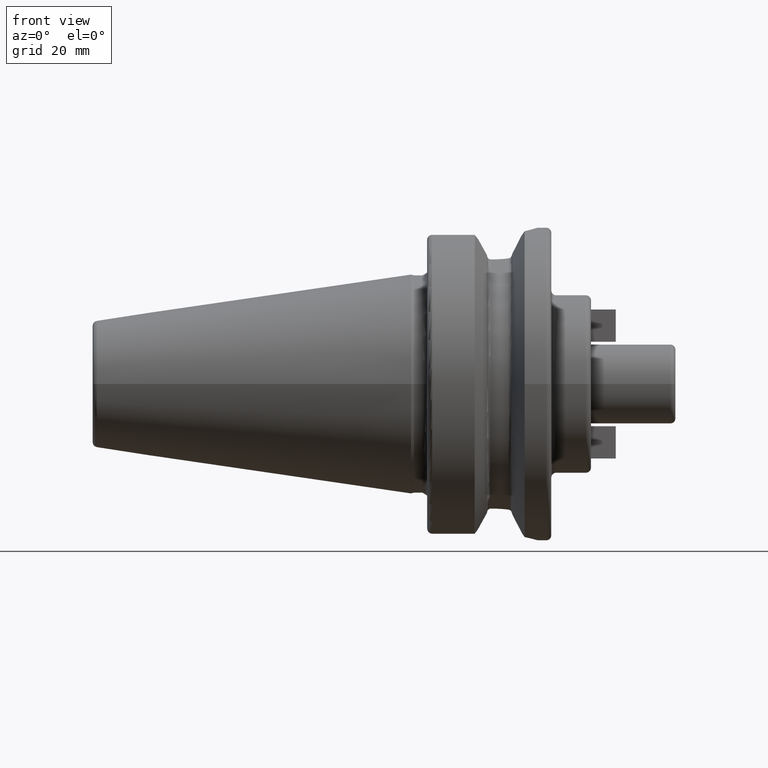
[diagram: clean part render]
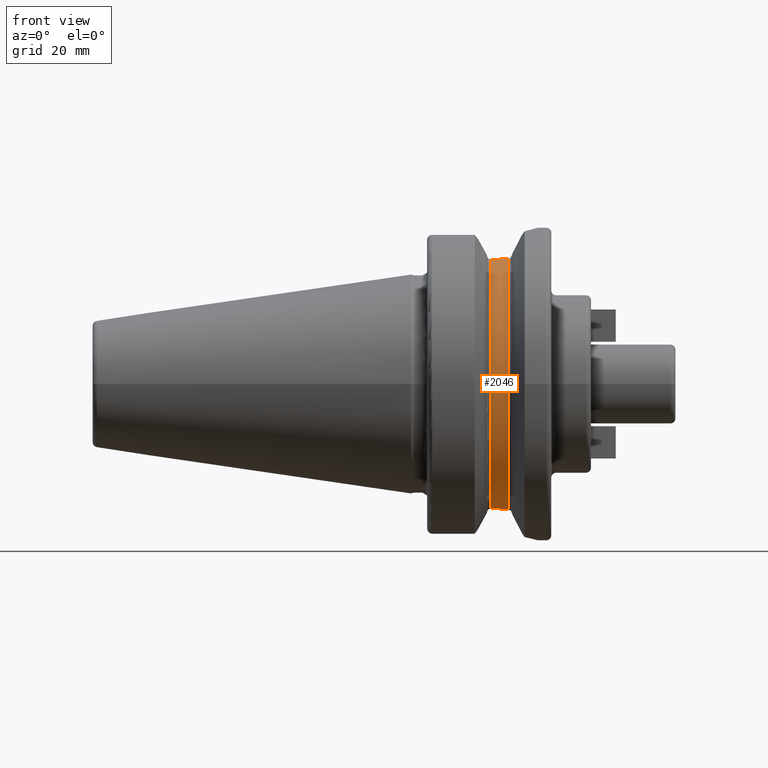
[diagram: same view with one face highlighted and labeled with its STEP entity id]
A machine part, front view. The second image highlights one B-rep face of the part: STEP entity #2046.
In plain terms, the highlighted cylindrical surface (partial cylindrical patch) has radius 26.375 mm, axis along (1, 0, 0).
Its self-contained STEP definition (entity closure, byte-faithful):
#308=DIRECTION('',(1.E0,0.E0,0.E0));
#309=VECTOR('',#308,3.425E-1);
#310=CARTESIAN_POINT('',(1.48125E1,-8.095E0,-2.510202382279E1));
#311=LINE('',#310,#309);
#367=CARTESIAN_POINT('',(1.83875E1,-7.421588020768E0,-2.530929979770E1));
#368=CARTESIAN_POINT('',(1.804170386611E1,-7.572200800631E0,-2.526513476699E1));
#369=CARTESIAN_POINT('',(1.734035783411E1,-7.820815511030E0,-2.518941465742E1));
#370=CARTESIAN_POINT('',(1.625266243851E1,-8.045449936191E0,-2.511808739805E1));
#371=CARTESIAN_POINT('',(1.552274116086E1,-8.095E0,-2.510202382279E1));
#372=CARTESIAN_POINT('',(1.5155E1,-8.095E0,-2.510202382279E1));
#374=CARTESIAN_POINT('',(1.48125E1,0.E0,0.E0));
#375=DIRECTION('',(-1.E0,0.E0,0.E0));
#376=DIRECTION('',(0.E0,-3.069194312796E-1,-9.517355003902E-1));
#377=AXIS2_PLACEMENT_3D('',#374,#375,#376);
#379=CARTESIAN_POINT('',(1.5155E1,-8.095E0,2.510202382279E1));
#380=CARTESIAN_POINT('',(1.552274116086E1,-8.095E0,2.510202382279E1));
#381=CARTESIAN_POINT('',(1.625266243851E1,-8.045449936191E0,2.511808739805E1));
#382=CARTESIAN_POINT('',(1.734035783411E1,-7.820815511030E0,2.518941465742E1));
#383=CARTESIAN_POINT('',(1.804170386611E1,-7.572200800631E0,2.526513476699E1));
#384=CARTESIAN_POINT('',(1.83875E1,-7.421588020768E0,2.530929979770E1));
#465=CARTESIAN_POINT('',(1.83875E1,0.E0,0.E0));
#466=DIRECTION('',(-1.E0,0.E0,0.E0));
#467=DIRECTION('',(0.E0,-2.813872235362E-1,-9.595943051262E-1));
#468=AXIS2_PLACEMENT_3D('',#465,#466,#467);
#551=DIRECTION('',(1.E0,0.E0,0.E0));
#552=VECTOR('',#551,3.425E-1);
#553=CARTESIAN_POINT('',(1.48125E1,-8.095E0,2.510202382279E1));
#554=LINE('',#553,#552);
#1320=CARTESIAN_POINT('',(1.48125E1,-8.095E0,-2.510202382279E1));
#1321=CARTESIAN_POINT('',(1.48125E1,-8.095E0,2.510202382279E1));
#1322=VERTEX_POINT('',#1320);
#1323=VERTEX_POINT('',#1321);
#1332=CARTESIAN_POINT('',(1.83875E1,-7.421588020768E0,-2.530929979770E1));
#1333=CARTESIAN_POINT('',(1.83875E1,-7.421588020768E0,2.530929979770E1));
#1334=VERTEX_POINT('',#1332);
#1335=VERTEX_POINT('',#1333);
#1461=CARTESIAN_POINT('',(1.5155E1,-8.095E0,2.510202382279E1));
#1462=VERTEX_POINT('',#1461);
#1469=CARTESIAN_POINT('',(1.5155E1,-8.095E0,-2.510202382279E1));
#1470=VERTEX_POINT('',#1469);
#2029=CARTESIAN_POINT('',(1.106999478413E1,0.E0,0.E0));
#2030=DIRECTION('',(1.E0,0.E0,0.E0));
#2031=DIRECTION('',(0.E0,-1.E0,0.E0));
#2032=AXIS2_PLACEMENT_3D('',#2029,#2030,#2031);
#2033=CYLINDRICAL_SURFACE('',#2032,2.6375E1);
#2035=ORIENTED_EDGE('',*,*,#2034,.T.);
#2036=ORIENTED_EDGE('',*,*,#1968,.F.);
#2037=ORIENTED_EDGE('',*,*,#2002,.T.);
#2039=ORIENTED_EDGE('',*,*,#2038,.T.);
#2041=ORIENTED_EDGE('',*,*,#2040,.T.);
#2043=ORIENTED_EDGE('',*,*,#2042,.F.);
#2044=EDGE_LOOP('',(#2035,#2036,#2037,#2039,#2041,#2043));
#2045=FACE_OUTER_BOUND('',#2044,.F.);
#2046=ADVANCED_FACE('',(#2045),#2033,.T.);
#373=B_SPLINE_CURVE_WITH_KNOTS('',3,(#367,#368,#369,#370,#371,#372),
.UNSPECIFIED.,.F.,.F.,(4,1,1,4),(0.E0,3.333333333333E-1,6.666666666667E-1,1.E0),
.UNSPECIFIED.);
#378=CIRCLE('',#377,2.6375E1);
#385=B_SPLINE_CURVE_WITH_KNOTS('',3,(#379,#380,#381,#382,#383,#384),
.UNSPECIFIED.,.F.,.F.,(4,1,1,4),(0.E0,3.333333333333E-1,6.666666666667E-1,1.E0),
.UNSPECIFIED.);
#469=CIRCLE('',#468,2.6375E1);
#1968=EDGE_CURVE('',#1322,#1470,#311,.T.);
#2002=EDGE_CURVE('',#1322,#1323,#378,.T.);
#2034=EDGE_CURVE('',#1334,#1470,#373,.T.);
#2038=EDGE_CURVE('',#1323,#1462,#554,.T.);
#2040=EDGE_CURVE('',#1462,#1335,#385,.T.);
#2042=EDGE_CURVE('',#1334,#1335,#469,.T.);